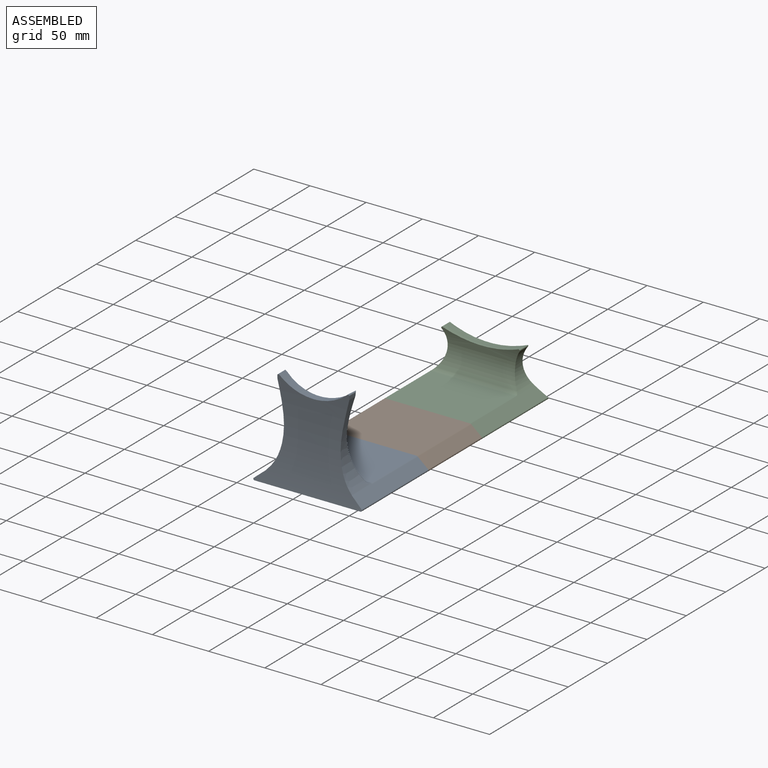
[diagram: assembled view]
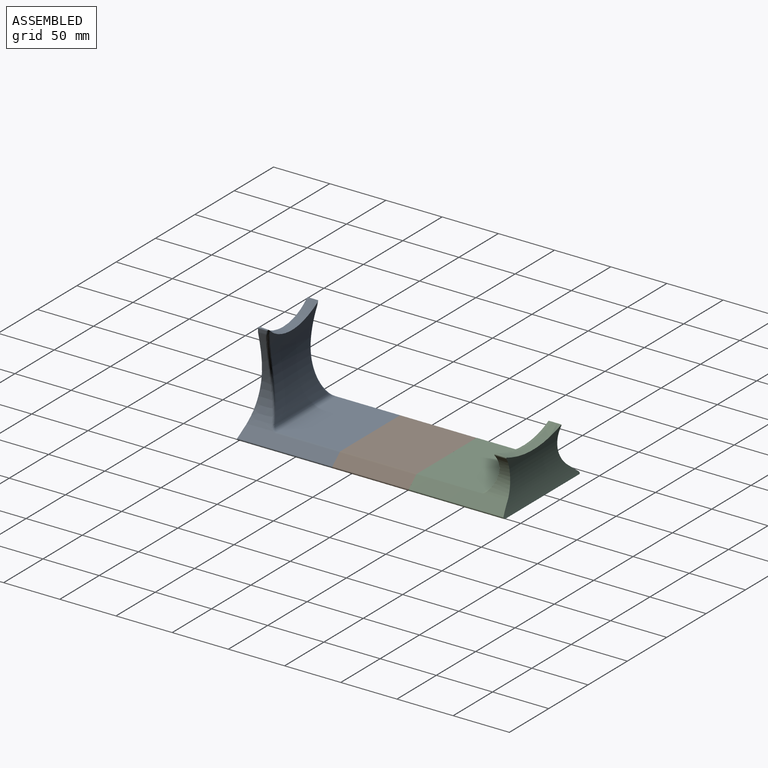
[diagram: assembled view, second angle]
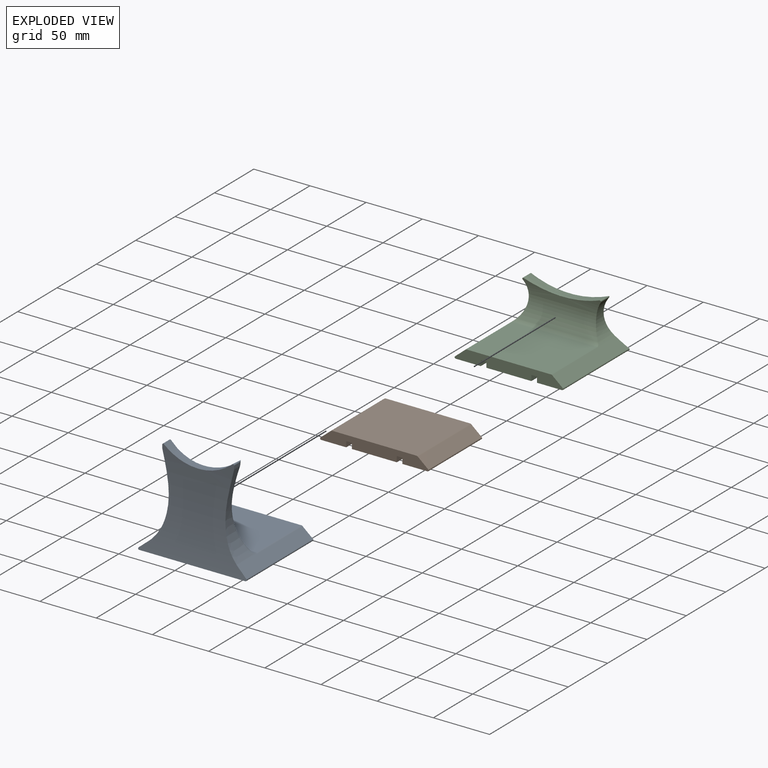
[diagram: exploded view]
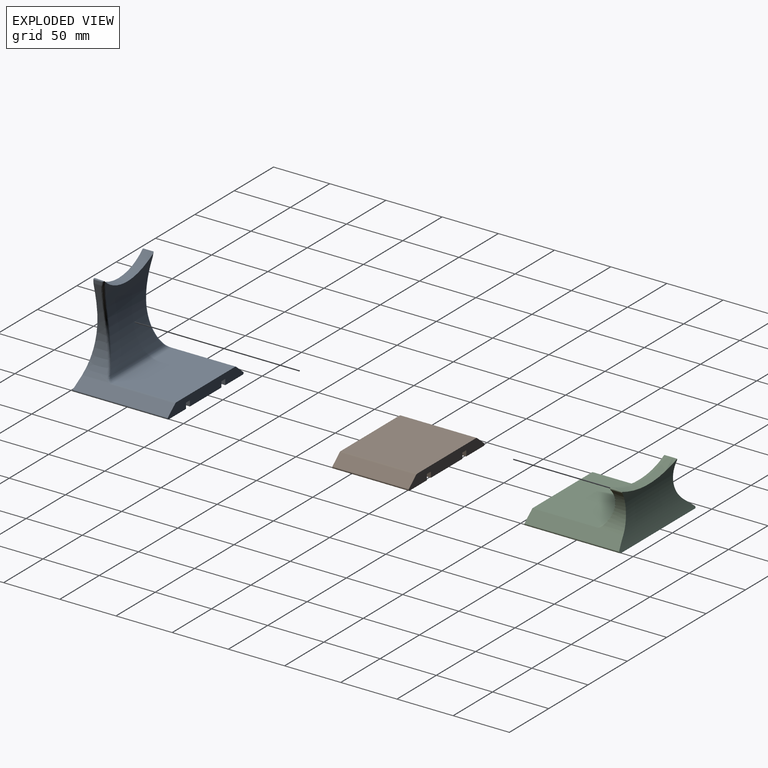
[diagram: exploded view, second angle]
ASSEMBLY  parts=3 mates=6
PART A: 42 faces, bbox 96.6x85x87.6 mm
  f0: plane 96.53x10mm, normal (0,1,0), area 828.5mm2, adj f2,f13,f14,f15,f16,f17,f22,f23
  f1: cylinder r=53mm len=0.07mm, axis (0,1,0), area 0mm2, adj f4,f18,f21
  f2: plane 94.53x85mm, normal (0,0,-1), area 7785mm2, adj f0,f15,f16,f18,f22,f23,f25,f26
  f3: cylinder r=53mm len=0.86mm, axis (0,1,0), area 0.4mm2, adj f12,f18,f21
  f4: cylinder r=53mm len=0.07mm, axis (0,1,0), area 0mm2, adj f1,f18,f21
  f5: cylinder r=1mm len=9.24mm, axis (0,1,0), area 13.5mm2, adj f6,f18,f21,f35
  f6: plane 7.58x2.32mm, normal (-1,0,0), area 17mm2, adj f5,f7,f18,f35
  f7: cylinder r=5mm len=7.11mm, axis (0,1,0), area 8.5mm2, adj f6,f8,f18,f34
  f8: extruded ~72.34x23.71mm, area 835.7mm2, adj f7,f17,f18,f32,f33
  f9: extruded ~72.34x23.71mm, area 835.7mm2, adj f10,f14,f18,f38,f39
  f10: cylinder r=5mm len=7.11mm, axis (0,1,0), area 8.5mm2, adj f9,f11,f18,f40
  f11: plane 7.58x2.32mm, normal (1,0,0), area 17mm2, adj f10,f12,f18,f41
  f12: cylinder r=1mm len=9.34mm, axis (0,1,0), area 15.8mm2, adj f3,f11,f18,f21,f41
  f13: plane 74.86x56.64mm, normal (0,0,1), area 4240.2mm2, adj f0,f20,f30,f36
  f14: plane 84.7x9.84mm, normal (0.65,0,0.76), area 1027.9mm2, adj f0,f9,f15,f18,f36,f37,f38
  f15: cylinder r=1mm len=85mm, axis (0,1,0), area 207mm2, adj f0,f2,f14,f18
  f16: cylinder r=1mm len=85mm, axis (0,1,0), area 207mm2, adj f0,f2,f17,f18
  f17: plane 84.7x9.84mm, normal (-0.65,0,0.76), area 1027.9mm2, adj f0,f8,f16,f18,f30,f31,f32
  f18: cylinder r=402.55mm len=96.53mm, axis (1,0,0), area 4812.7mm2, adj f1,f2,f3,f4,f5,f6,f7,f8
  f19: cylinder r=130.21mm len=72.44mm, axis (1,0,0), area 3401.2mm2, adj f20,f21,f33,f34,f35,f39,f40,f41
  f20: cylinder r=5mm len=74.86mm, axis (1,0,0), area 427.4mm2, adj f13,f19,f31,f32,f37,f38
  f21: cylinder r=45.6mm len=62.68mm, axis (0,1,-0.08), area 571.6mm2, adj f1,f3,f4,f5,f12,f18,f19,f35
  f22: plane 25x5mm, normal (-1,0,0), area 125mm2, adj f0,f2,f24,f25
  f23: plane 25x5mm, normal (1,0,0), area 125mm2, adj f0,f2,f24,f25
  f24: plane 25x5mm, normal (0,0,-1), area 125mm2, adj f0,f22,f23,f25
  f25: plane 5x5mm, normal (0,1,0), area 25mm2, adj f2,f22,f23,f24
  f26: plane 25x5mm, normal (1,0,0), area 125mm2, adj f0,f2,f27,f29
  f27: plane 25x5mm, normal (0,0,-1), area 125mm2, adj f0,f26,f28,f29
  f28: plane 25x5mm, normal (-1,0,0), area 125mm2, adj f0,f2,f27,f29
  f29: plane 5x5mm, normal (0,1,0), area 25mm2, adj f2,f26,f27,f28
  f30: cylinder r=2mm len=56.64mm, axis (0,-1,0), area 79.5mm2, adj f0,f13,f17,f31
  f31: bspline ~4.18x2.06mm, area 3.5mm2, adj f17,f20,f30,f32
  f32: bspline ~5.9x5.3mm, area 12.7mm2, adj f8,f17,f20,f31,f33
  f33: bspline ~74.81x13.13mm, area 221.4mm2, adj f8,f19,f32,f34
  f34: bspline ~3.63x2.4mm, area 3.2mm2, adj f7,f19,f33,f35
  f35: torus R=132.21mm, axis (-1,0,0), area 9.3mm2, adj f5,f6,f19,f21,f34
  f36: cylinder r=2mm len=56.64mm, axis (0,-1,0), area 79.5mm2, adj f0,f13,f14,f37
  f37: bspline ~2.96x2.06mm, area 3.5mm2, adj f14,f20,f36,f38
  f38: bspline ~5.9x5.3mm, area 12.7mm2, adj f9,f14,f20,f37,f39
  f39: bspline ~74.81x13.13mm, area 221.4mm2, adj f9,f19,f38,f40
  f40: bspline ~3.63x2.4mm, area 3.2mm2, adj f10,f19,f39,f41
  f41: torus R=132.21mm, axis (-1,0,0), area 9.4mm2, adj f11,f12,f19,f21,f40
PART B: 18 faces, bbox 96.5x68x10 mm
  f0: plane 68x40mm, normal (0,0,-1), area 2720mm2, adj f2,f3,f12,f15
  f1: plane 68x22.27mm, normal (0,0,-1), area 1514.1mm2, adj f2,f3,f9,f13
  f2: plane 96.53x10mm, normal (0,-1,0), area 828.5mm2, adj f0,f1,f4,f5,f6,f7,f8,f9
  f3: plane 96.53x10mm, normal (0,1,0), area 828.5mm2, adj f0,f1,f4,f5,f6,f7,f8,f9
  f4: plane 74.86x68mm, normal (0,0,1), area 5090.6mm2, adj f2,f3,f5,f11
  f5: cylinder r=2mm len=68mm, axis (0,1,0), area 95.4mm2, adj f2,f3,f4,f6
  f6: plane 68x9.19mm, normal (-0.65,0,0.76), area 818.1mm2, adj f2,f3,f5,f7
  f7: cylinder r=1mm len=68mm, axis (0,1,0), area 165.9mm2, adj f2,f3,f6,f8
  f8: plane 68x22.27mm, normal (0,0,-1), area 1514.1mm2, adj f2,f3,f7,f17
  f9: cylinder r=1mm len=68mm, axis (0,1,0), area 165.9mm2, adj f1,f2,f3,f10
  f10: plane 68x9.19mm, normal (0.65,0,0.76), area 818.1mm2, adj f2,f3,f9,f11
  f11: cylinder r=2mm len=68mm, axis (0,1,0), area 95.4mm2, adj f2,f3,f4,f10
  f12: plane 68x5mm, normal (1,0,0), area 340mm2, adj f0,f2,f3,f14
  f13: plane 68x5mm, normal (-1,0,0), area 340mm2, adj f1,f2,f3,f14
  f14: plane 68x5mm, normal (0,0,-1), area 340mm2, adj f2,f3,f12,f13
  f15: plane 68x5mm, normal (-1,0,0), area 340mm2, adj f0,f2,f3,f16
  f16: plane 68x5mm, normal (0,0,-1), area 340mm2, adj f2,f3,f15,f17
  f17: plane 68x5mm, normal (1,0,0), area 340mm2, adj f2,f3,f8,f16
PART C: 28 faces, bbox 96.8x85.2x43.7 mm
  f0: plane 96.53x10mm, normal (0,-1,0), area 828.6mm2, adj f6,f7,f8,f9,f10,f11,f19,f20
  f1: cylinder r=90mm len=67.29mm, axis (0,1,0), area 189.9mm2, adj f2,f5,f15,f16,f17,f27
  f2: cylinder r=1mm len=10.89mm, axis (0,1,0), area 23.3mm2, adj f1,f3,f12,f15,f27
  f3: cylinder r=22.9mm len=31.49mm, axis (0,1,0), area 422.9mm2, adj f2,f8,f12,f13,f15,f16,f18
  f4: cylinder r=22.9mm len=31.49mm, axis (0,1,0), area 422.9mm2, adj f5,f7,f13,f14,f16,f17,f18
  f5: cylinder r=1mm len=10.89mm, axis (0,1,0), area 23.3mm2, adj f1,f4,f14,f17,f27
  f6: cylinder r=1mm len=85mm, axis (0,1,0), area 206.4mm2, adj f0,f7,f11,f13
  f7: plane 84.27x9.86mm, normal (0.65,0,0.76), area 1052.3mm2, adj f0,f4,f6,f10,f13
  f8: plane 84.27x9.86mm, normal (-0.65,0,0.76), area 1052.3mm2, adj f0,f3,f9,f10,f13
  f9: cylinder r=1mm len=85mm, axis (0,1,0), area 206.4mm2, adj f0,f8,f11,f13
  f10: plane 76.33x57.62mm, normal (0,0,1), area 4397.8mm2, adj f0,f7,f8,f18
  f11: plane 94.53x85mm, normal (0,0,-1), area 7785.3mm2, adj f0,f6,f9,f13,f19,f20,f22,f23
  f12: plane 7.03x2.53mm, normal (0,1,-0.09), area 7.9mm2, adj f2,f3,f13,f27
  f13: cylinder r=75.7mm len=96.53mm, axis (-1,0,0), area 2741.7mm2, adj f3,f4,f6,f7,f8,f9,f11,f12
  f14: plane 7.03x2.53mm, normal (0,1,-0.09), area 7.9mm2, adj f4,f5,f13,f27
  f15: plane 9.72x3.13mm, normal (0,-0.97,-0.23), area 14.1mm2, adj f1,f2,f3,f16
  f16: cylinder r=34.02mm len=72.15mm, axis (-1,0,0), area 1757.4mm2, adj f1,f3,f4,f15,f17,f18
  f17: plane 9.72x3.13mm, normal (0,-0.97,-0.23), area 14.1mm2, adj f1,f4,f5,f16
  f18: cylinder r=5mm len=76.33mm, axis (-1,0,0), area 344.5mm2, adj f3,f4,f10,f16
  f19: plane 25x5mm, normal (1,0,0), area 125mm2, adj f0,f11,f21,f22
  f20: plane 25x5mm, normal (-1,0,0), area 125mm2, adj f0,f11,f21,f22
  f21: plane 25x5mm, normal (0,0,-1), area 125mm2, adj f0,f19,f20,f22
  f22: plane 5x5mm, normal (0,-1,0), area 25mm2, adj f11,f19,f20,f21
  f23: plane 25x5mm, normal (-1,0,0), area 125mm2, adj f0,f11,f24,f26
  f24: plane 25x5mm, normal (0,0,-1), area 125mm2, adj f0,f23,f25,f26
  f25: plane 25x5mm, normal (1,0,0), area 125mm2, adj f0,f11,f24,f26
  f26: plane 5x5mm, normal (0,-1,0), area 25mm2, adj f11,f23,f24,f25
  f27: cylinder r=90mm len=69.6mm, axis (0,0.99,-0.11), area 508.4mm2, adj f1,f2,f5,f12,f13,f14
PLACE A t=(-39.53,78.45,9.04)mm
PLACE B t=(-39.53,206.45,9.04)mm
PLACE C t=(-39.53,291.45,9.04)mm
MATE fastened B.f3 <-> C.f0  axis (0,1,0) through (-39.53,206.45,13.97)mm
MATE parallel A.f2 <-> B.f0  axis (0,0,-1) through (-39.53,94.99,9.04)mm
MATE parallel A.f26 <-> B.f12  axis (1,0,0) through (-19.53,125.95,11.54)mm
MATE parallel B.f0 <-> C.f11  axis (0,0,-1) through (-39.53,172.45,9.04)mm
MATE parallel B.f12 <-> C.f19  axis (1,0,0) through (-19.53,172.45,11.54)mm
MATE fastened A.f0 <-> B.f2  axis (0,1,0) through (-3.4,138.45,9.04)mm
